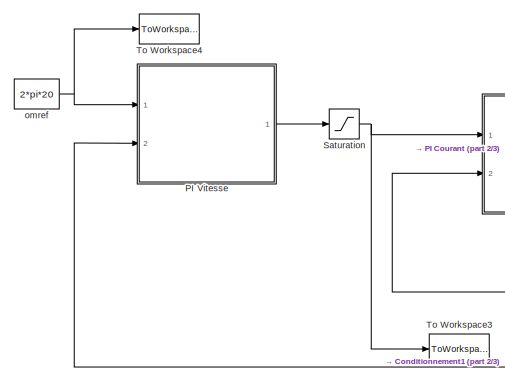
[diagram: root canvas - part 1/3, left side, full height]
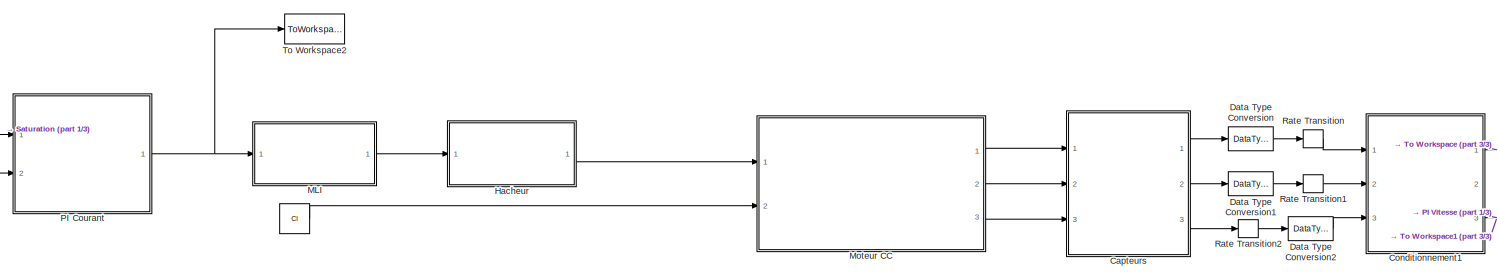
[diagram: root canvas - part 2/3, central region]
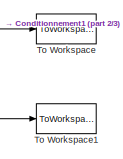
[diagram: root canvas - part 3/3, middle right region]
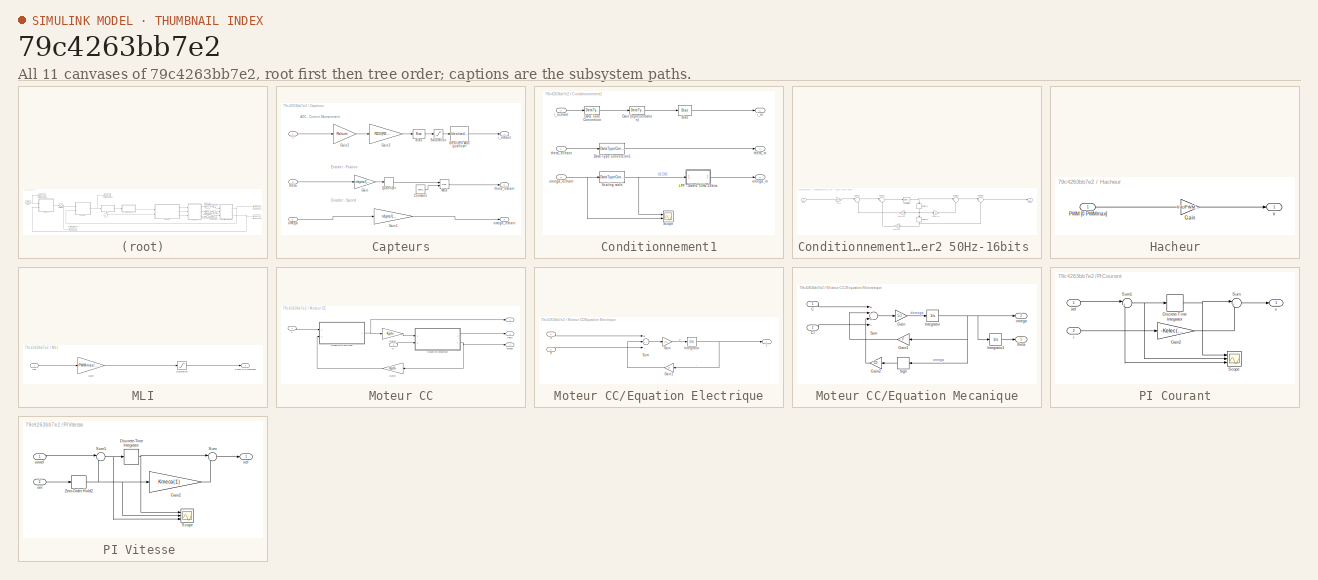
[diagram: thumbnail index - all 11 canvases of the model, root first then tree order]
MODEL slx_79c4263bb7e2
KIND model
CONFIG AbsTol = auto
CONFIG EnableMultiTasking = off
CONFIG FixedStep = 1e-4
CONFIG MaxStep = 1e-4
CONFIG MinStep = auto
CONFIG RelTol = 1e-3
CONFIG SampleTimeConstraint = Unconstrained
CONFIG Solver = VariableStepAuto
CONFIG SolverName = VariableStepAuto
CONFIG StartTime = 0.0
CONFIG StopTime = Tf
BLOCK [Constant]  
  Value = Cl
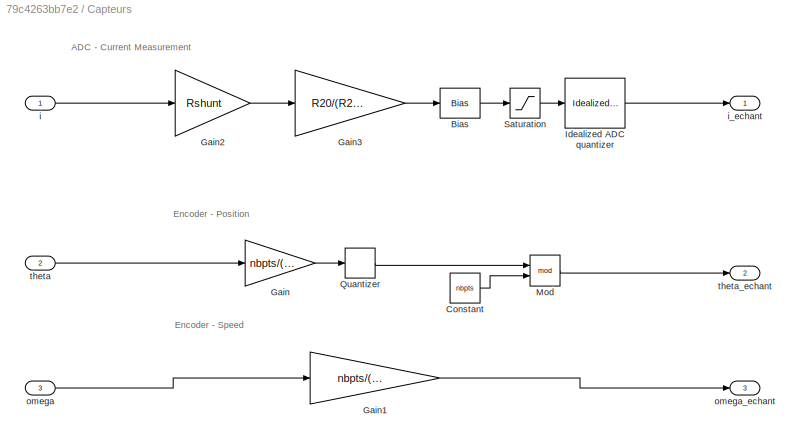
BLOCK [SubSystem] Capteurs
  Ports = [3, 3]
  RequestExecContextInheritance = off
  Variant = off
BLOCK [Bias] Capteurs/Bias
  Bias = Vcc/2
  SaturateOnIntegerOverflow = off
BLOCK [Constant] Capteurs/Constant
  Value = nbpts
BLOCK [Gain] Capteurs/Gain
  Gain = nbpts/(2*pi)
  OutDataTypeStr = Inherit: Inherit via internal rule
  ParamDataTypeStr = Inherit: Inherit via internal rule
  SaturateOnIntegerOverflow = off
BLOCK [Gain] Capteurs/Gain1
  Gain = nbpts/(2*pi)*TsQEI
  OutDataTypeStr = Inherit: Inherit via internal rule
  ParamDataTypeStr = Inherit: Inherit via internal rule
  SaturateOnIntegerOverflow = off
BLOCK [Gain] Capteurs/Gain2
  Gain = Rshunt
  OutDataTypeStr = Inherit: Inherit via internal rule
  ParamDataTypeStr = Inherit: Inherit via internal rule
  SaturateOnIntegerOverflow = off
BLOCK [Gain] Capteurs/Gain3
  Gain = R20/(R22+R23)
  OutDataTypeStr = Inherit: Inherit via internal rule
  ParamDataTypeStr = Inherit: Inherit via internal rule
  SaturateOnIntegerOverflow = off
BLOCK [Reference] Capteurs/Idealized ADC quantizer  REF=simulink_extras/Additional
Discrete/Idealized ADC quantizer
  AttributesFormatString = (settings: %<NumberOfConverterBits>-bit converter\nVmin: %<Vmin>, Vmax: %<Vmax>)
  Ports = [1, 1]
  SourceBlock = simulink_extras/Additional\nDiscrete/Idealized ADC quantizer
  SourceProductBaseCode = SL
  SourceProductName = Simulink
  SourceType = IdealADC
BLOCK [Math] Capteurs/Mod
  Operator = mod
  Ports = [2, 1]
BLOCK [Quantizer] Capteurs/Quantizer
  QuantizationInterval = 1
BLOCK [Saturate] Capteurs/Saturation
  InputPortMap = u0
  LowerLimit = 0
  Ports = [1, 1]
  UpperLimit = Vcc
BLOCK [Inport] Capteurs/i
  IconDisplay = Port number
BLOCK [Outport] Capteurs/i_echant
  IconDisplay = Port number
BLOCK [Inport] Capteurs/omega
  IconDisplay = Port number
  Port = 3
BLOCK [Outport] Capteurs/omega_echant
  IconDisplay = Port number
  Port = 3
BLOCK [Inport] Capteurs/theta
  IconDisplay = Port number
  Port = 2
BLOCK [Outport] Capteurs/theta_echant
  IconDisplay = Port number
  Port = 2
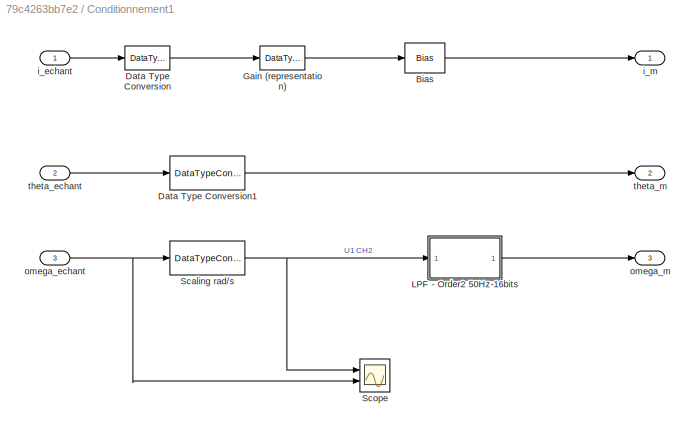
BLOCK [SubSystem] Conditionnement1
  Ports = [3, 3]
  RequestExecContextInheritance = off
  Variant = off
BLOCK [Bias] Conditionnement1/Bias
  Bias = -4.4
  SaturateOnIntegerOverflow = off
BLOCK [DataTypeConversion] Conditionnement1/Data Type Conversion
  OutDataTypeStr = int16
  RndMeth = Floor
  SaturateOnIntegerOverflow = off
BLOCK [DataTypeConversion] Conditionnement1/Data Type Conversion1
  ConvertRealWorld = Stored Integer (SI)
  OutDataTypeStr = fixdt(0,16,2*pi/Lignes,0)
  OutMax = [pi]
  OutMin = [0]
  RndMeth = Floor
  SaturateOnIntegerOverflow = off
BLOCK [DataTypeConversion] Conditionnement1/Gain (representation)
  ConvertRealWorld = Stored Integer (SI)
  OutDataTypeStr = fixdt(1,16,8.8/2^10,0)
  RndMeth = Floor
  SaturateOnIntegerOverflow = off
BLOCK [SubSystem] Conditionnement1/LPF - Order2 50Hz-16bits 
  ErrorFcn = dspFilterRealizedInBasicElemsAlgLoopErrFcnCallback
  Ports = [1, 1]
  RequestExecContextInheritance = off
  Tag = FilterWizardSubSystem
  UserDataPersistent = on
  Variant = off
BLOCK [DataTypeConversion] Conditionnement1/LPF - Order2 50Hz-16bits /CastState1
  OutDataTypeStr = fixdt(1,16,6)
  RndMeth = Floor
  SaturateOnIntegerOverflow = off
BLOCK [Delay] Conditionnement1/LPF - Order2 50Hz-16bits /Delay11
  DelayLength = 1
  InitialCondition = 0
  InputPortMap = u0
  Ports = [1, 1]
BLOCK [Delay] Conditionnement1/LPF - Order2 50Hz-16bits /Delay21
  DelayLength = 1
  InitialCondition = 0
  InputPortMap = u0
  Ports = [1, 1]
BLOCK [Inport] Conditionnement1/LPF - Order2 50Hz-16bits /Input
  IconDisplay = Port number
  OutMax = [500]
  OutMin = [-500]
BLOCK [Outport] Conditionnement1/LPF - Order2 50Hz-16bits /Output
  IconDisplay = Port number
BLOCK [Sum] Conditionnement1/LPF - Order2 50Hz-16bits /SumA21
  AccumDataTypeStr = fixdt(1,16,6)
  IconShape = round
  InputSameDT = off
  Inputs = |+-
  OutDataTypeStr = fixdt(1,16,6)
  Ports = [2, 1]
  SaturateOnIntegerOverflow = off
BLOCK [Sum] Conditionnement1/LPF - Order2 50Hz-16bits /SumA31
  AccumDataTypeStr = fixdt(1,16,6)
  IconShape = round
  InputSameDT = off
  Inputs = |+-
  OutDataTypeStr = fixdt(1,16,6)
  Ports = [2, 1]
  SaturateOnIntegerOverflow = off
BLOCK [Sum] Conditionnement1/LPF - Order2 50Hz-16bits /SumB21
  AccumDataTypeStr = fixdt(1,16,5)
  IconShape = round
  InputSameDT = off
  Inputs = |++
  OutDataTypeStr = fixdt(1,16,5)
  Ports = [2, 1]
  SaturateOnIntegerOverflow = off
BLOCK [Sum] Conditionnement1/LPF - Order2 50Hz-16bits /SumB31
  AccumDataTypeStr = fixdt(1,16,4)
  IconShape = round
  InputSameDT = off
  Inputs = |++
  OutDataTypeStr = fixdt(1,16,4)
  Ports = [2, 1]
  SaturateOnIntegerOverflow = off
BLOCK [Gain] Conditionnement1/LPF - Order2 50Hz-16bits /a(2)(1)
  Gain = -1.14298050253990113
  OutDataTypeStr = fixdt(1,16,6)
  ParamDataTypeStr = fixdt(1,16,14)
  SaturateOnIntegerOverflow = off
BLOCK [Gain] Conditionnement1/LPF - Order2 50Hz-16bits /a(3)(1)
  Gain = 0.412801598096188771
  OutDataTypeStr = fixdt(1,16,8)
  ParamDataTypeStr = fixdt(0,16,17)
  SaturateOnIntegerOverflow = off
BLOCK [Gain] Conditionnement1/LPF - Order2 50Hz-16bits /b(2)(1)
  Gain = 2
  OutDataTypeStr = fixdt(1,16,5)
  ParamDataTypeStr = fixdt(0,16,14)
  SaturateOnIntegerOverflow = off
BLOCK [Gain] Conditionnement1/LPF - Order2 50Hz-16bits /s(1)
  Gain = 0.0674552738890718956
  OutDataTypeStr = fixdt(1,16,8)
  ParamDataTypeStr = fixdt(0,16,19)
BLOCK [DataTypeConversion] Conditionnement1/Scaling rad//s
  ConvertRealWorld = Stored Integer (SI)
  OutDataTypeStr = fixdt(1,16,2*pi/Lignes/TsQEI,0)
  OutMax = [pi]
  OutMin = [0]
  RndMeth = Floor
  SaturateOnIntegerOverflow = off
BLOCK [Scope] Conditionnement1/Scope
  NumInputPorts = 2
  Ports = [2]
  ScopeSpecificationString = Simulink.scopes.TimeScopeBlockCfg('CurrentConfiguration', extmgr.ConfigurationSet(extmgr.Configuration('Core','General UI',true),extmgr.Configuration('Core','Source UI',true),extmgr.Configuration('Sources','WiredSimulink',true,'DataLoggingVariableName','ScopeData2'),extmgr.Configuration('Visuals','Time Domain',true,'SerializedDisplays',{struct('MinYLimReal','-45.55309','MaxYLimReal','409.97784','Y...<+2036ch>
BLOCK [Inport] Conditionnement1/i_echant
  IconDisplay = Port number
BLOCK [Outport] Conditionnement1/i_m
  IconDisplay = Port number
BLOCK [Inport] Conditionnement1/omega_echant
  IconDisplay = Port number
  LockScale = on
  OutDataTypeStr = int16
  Port = 3
BLOCK [Outport] Conditionnement1/omega_m
  IconDisplay = Port number
  Port = 3
BLOCK [Inport] Conditionnement1/theta_echant
  IconDisplay = Port number
  LockScale = on
  OutDataTypeStr = int16
  Port = 2
BLOCK [Outport] Conditionnement1/theta_m
  IconDisplay = Port number
  Port = 2
BLOCK [DataTypeConversion] Data Type Conversion
  OutDataTypeStr = uint16
  RndMeth = Floor
  SaturateOnIntegerOverflow = off
BLOCK [DataTypeConversion] Data Type Conversion1
  LockScale = on
  OutDataTypeStr = int16
  RndMeth = Floor
  SaturateOnIntegerOverflow = off
BLOCK [DataTypeConversion] Data Type Conversion2
  LockScale = on
  OutDataTypeStr = int16
  RndMeth = Floor
  SaturateOnIntegerOverflow = off
BLOCK [SubSystem] Hacheur
  Ports = [1, 1]
  RequestExecContextInheritance = off
  Variant = off
BLOCK [Gain] Hacheur/Gain
  Gain = Vdc/PWMmax
  OutDataTypeStr = double
  ParamDataTypeStr = Inherit: Inherit via internal rule
  SaturateOnIntegerOverflow = off
BLOCK [Inport] Hacheur/PWM [0 PWMmax]
  IconDisplay = Port number
BLOCK [Outport] Hacheur/v
  IconDisplay = Port number
BLOCK [SubSystem] MLI
  Ports = [1, 1]
  RequestExecContextInheritance = off
  Variant = off
BLOCK [Gain] MLI/Gain
  Gain = PWMmax/Vdc
  OutDataTypeStr = int16
  ParamDataTypeStr = Inherit: Inherit via internal rule
  SaturateOnIntegerOverflow = off
BLOCK [Outport] MLI/PWM [0 PWMmax]
  IconDisplay = Port number
BLOCK [Saturate] MLI/Saturation
  InputPortMap = u0
  LowerLimit = -PWMmax
  Ports = [1, 1]
  UpperLimit = PWMmax
BLOCK [Inport] MLI/Vdc
  IconDisplay = Port number
BLOCK [SubSystem] Moteur CC
  Ports = [2, 3]
  RequestExecContextInheritance = off
  Variant = off
BLOCK [Inport] Moteur CC/Cl
  IconDisplay = Port number
  Port = 2
BLOCK [SubSystem] Moteur CC/Equation Electrique
  Ports = [2, 1]
  RequestExecContextInheritance = off
  Variant = off
BLOCK [Gain] Moteur CC/Equation Electrique/Gain
  Gain = 1/L
  OutDataTypeStr = Inherit: Inherit via internal rule
  ParamDataTypeStr = Inherit: Inherit via internal rule
  SaturateOnIntegerOverflow = off
BLOCK [Gain] Moteur CC/Equation Electrique/Gain1
  Gain = R
  OutDataTypeStr = Inherit: Inherit via internal rule
  ParamDataTypeStr = Inherit: Inherit via internal rule
  SaturateOnIntegerOverflow = off
BLOCK [Integrator] Moteur CC/Equation Electrique/Integrator
  Ports = [1, 1]
BLOCK [Sum] Moteur CC/Equation Electrique/Sum
  InputSameDT = off
  Inputs = +--
  OutDataTypeStr = Inherit: Inherit via internal rule
  Ports = [3, 1]
  SaturateOnIntegerOverflow = off
BLOCK [Inport] Moteur CC/Equation Electrique/e
  IconDisplay = Port number
  Port = 2
BLOCK [Outport] Moteur CC/Equation Electrique/i
  IconDisplay = Port number
BLOCK [Inport] Moteur CC/Equation Electrique/v
  IconDisplay = Port number
BLOCK [SubSystem] Moteur CC/Equation Mecanique
  Ports = [2, 2]
  RequestExecContextInheritance = off
  Variant = off
BLOCK [Inport] Moteur CC/Equation Mecanique/C
  IconDisplay = Port number
BLOCK [Inport] Moteur CC/Equation Mecanique/Cl
  IconDisplay = Port number
  Port = 2
BLOCK [Gain] Moteur CC/Equation Mecanique/Gain
  Gain = 1/J
  OutDataTypeStr = Inherit: Inherit via internal rule
  ParamDataTypeStr = Inherit: Inherit via internal rule
  SaturateOnIntegerOverflow = off
BLOCK [Gain] Moteur CC/Equation Mecanique/Gain1
  Gain = F
  OutDataTypeStr = Inherit: Inherit via internal rule
  ParamDataTypeStr = Inherit: Inherit via internal rule
  SaturateOnIntegerOverflow = off
BLOCK [Gain] Moteur CC/Equation Mecanique/Gain2
  Gain = C0
  OutDataTypeStr = Inherit: Inherit via internal rule
  ParamDataTypeStr = Inherit: Inherit via internal rule
  SaturateOnIntegerOverflow = off
BLOCK [Integrator] Moteur CC/Equation Mecanique/Integrator
  Ports = [1, 1]
BLOCK [Integrator] Moteur CC/Equation Mecanique/Integrator1
  Ports = [1, 1]
BLOCK [Signum] Moteur CC/Equation Mecanique/Sign
BLOCK [Sum] Moteur CC/Equation Mecanique/Sum
  InputSameDT = off
  Inputs = +-+-
  OutDataTypeStr = Inherit: Inherit via internal rule
  Ports = [4, 1]
  SaturateOnIntegerOverflow = off
BLOCK [Outport] Moteur CC/Equation Mecanique/omega
  IconDisplay = Port number
  Port = 2
BLOCK [Outport] Moteur CC/Equation Mecanique/theta
  IconDisplay = Port number
BLOCK [Gain] Moteur CC/Gain1
  Gain = Kphi
  OutDataTypeStr = Inherit: Inherit via internal rule
  ParamDataTypeStr = Inherit: Inherit via internal rule
  SaturateOnIntegerOverflow = off
BLOCK [Gain] Moteur CC/Gain3  
  Gain = Kphi
  OutDataTypeStr = Inherit: Inherit via internal rule
  ParamDataTypeStr = Inherit: Inherit via internal rule
  SaturateOnIntegerOverflow = off
BLOCK [Outport] Moteur CC/i
  IconDisplay = Port number
BLOCK [Outport] Moteur CC/omega
  IconDisplay = Port number
  Port = 3
BLOCK [Outport] Moteur CC/theta
  IconDisplay = Port number
  Port = 2
BLOCK [Inport] Moteur CC/v
  IconDisplay = Port number
BLOCK [SubSystem] PI Courant
  Ports = [2, 1]
  RequestExecContextInheritance = off
  TreatAsAtomicUnit = on
  Variant = off
BLOCK [DiscreteIntegrator] PI Courant/Discrete-Time Integrator
  ICPrevOutput = DiscIntNeverNeededParam
  ICPrevScaledInput = DiscIntNeverNeededParam
  InitialConditionSetting = State (most efficient)
  OutDataTypeStr = fixdt(1,32,26)
  Ports = [1, 1]
  SampleTime = Ts
  SaturateOnIntegerOverflow = on
  gainval = Kelec(2)
BLOCK [Gain] PI Courant/Gain2
  Gain = -Kelec(1)*Ts
  OutDataTypeStr = fixdt(1,16,16)
  ParamDataTypeStr = Inherit: Inherit via internal rule
  SaturateOnIntegerOverflow = off
BLOCK [Scope] PI Courant/Scope
  NumInputPorts = 3
  Ports = [3]
  ScopeSpecificationString = Simulink.scopes.TimeScopeBlockCfg('CurrentConfiguration', extmgr.ConfigurationSet(extmgr.Configuration('Core','General UI',true),extmgr.Configuration('Core','Source UI',true),extmgr.Configuration('Sources','WiredSimulink',true,'DataLoggingVariableName','ScopeData3'),extmgr.Configuration('Visuals','Time Domain',true,'SerializedDisplays',{struct('MinYLimReal','-3.05273','MaxYLimReal','24.81836','YLa...<+2779ch>
BLOCK [Sum] PI Courant/Sum
  AccumDataTypeStr = fixdt(1,16,10)
  IconShape = round
  InputSameDT = off
  Inputs = |+-
  OutDataTypeStr = Inherit: Same as accumulator
  Ports = [2, 1]
  SaturateOnIntegerOverflow = off
BLOCK [Sum] PI Courant/Sum1
  IconShape = round
  InputSameDT = off
  Inputs = |+-
  OutDataTypeStr = fixdt(1,16,5)
  Ports = [2, 1]
  SaturateOnIntegerOverflow = off
BLOCK [Inport] PI Courant/i
  IconDisplay = Port number
  Port = 2
BLOCK [Inport] PI Courant/iref
  IconDisplay = Port number
  OutDataTypeStr = fixdt(1,16,6)
BLOCK [Outport] PI Courant/v
  IconDisplay = Port number
BLOCK [SubSystem] PI Vitesse 
  Ports = [2, 1]
  RequestExecContextInheritance = off
  TreatAsAtomicUnit = on
  Variant = off
BLOCK [DiscreteIntegrator] PI Vitesse /Discrete-Time Integrator
  ICPrevOutput = DiscIntNeverNeededParam
  ICPrevScaledInput = DiscIntNeverNeededParam
  InitialConditionSetting = State (most efficient)
  OutDataTypeStr = fixdt(1,32,20)
  Ports = [1, 1]
  SampleTime = Tsmeca
  gainval = -Kmeca(2)
BLOCK [Gain] PI Vitesse /Gain2
  Gain = Kmeca(1)
  OutDataTypeStr = Inherit: Inherit via internal rule
  ParamDataTypeStr = Inherit: Inherit via internal rule
  SaturateOnIntegerOverflow = off
BLOCK [Scope] PI Vitesse /Scope
  NumInputPorts = 3
  Ports = [3]
  ScopeSpecificationString = Simulink.scopes.TimeScopeBlockCfg('CurrentConfiguration', extmgr.ConfigurationSet(extmgr.Configuration('Core','General UI',true),extmgr.Configuration('Core','Source UI',true),extmgr.Configuration('Sources','WiredSimulink',true,'DataLoggingVariableName','ScopeData1'),extmgr.Configuration('Visuals','Time Domain',true,'SerializedDisplays',{struct('MinYLimReal','-3.00513','MaxYLimReal','27.04618','YLa...<+2773ch>
BLOCK [Sum] PI Vitesse /Sum
  IconShape = round
  InputSameDT = off
  Inputs = |+-
  OutDataTypeStr = fixdt(1,16,6)
  Ports = [2, 1]
BLOCK [Sum] PI Vitesse /Sum1
  IconShape = round
  InputSameDT = off
  Inputs = |+-
  OutDataTypeStr = fixdt(1,16,3)
  Ports = [2, 1]
BLOCK [ZeroOrderHold] PI Vitesse /Zero-Order Hold2
  SampleTime = Tsmeca
BLOCK [Outport] PI Vitesse /iref
  IconDisplay = Port number
BLOCK [Inport] PI Vitesse /om
  IconDisplay = Port number
  Port = 2
BLOCK [Inport] PI Vitesse /omref
  IconDisplay = Port number
  OutDataTypeStr = fixdt(1,16,4)
BLOCK [RateTransition] Rate Transition
  Deterministic = off
  OutPortSampleTime = Ts
BLOCK [RateTransition] Rate Transition1
  Deterministic = off
  OutPortSampleTime = TsQEI
BLOCK [RateTransition] Rate Transition2
  Deterministic = off
  OutPortSampleTime = TsQEI
BLOCK [Saturate] Saturation
  InputPortMap = u0
  LowerLimit = -Imax
  Ports = [1, 1]
  UpperLimit = Imax
BLOCK [ToWorkspace] To Workspace
  FixptAsFi = on
  MaxDataPoints = inf
  Ports = [1]
  SampleTime = -1
  Save2DSignal = 3-D array (concatenate along third dimension)
  SaveFormat = Timeseries
  VariableName = i
BLOCK [ToWorkspace] To Workspace1
  FixptAsFi = on
  MaxDataPoints = inf
  Ports = [1]
  SampleTime = -1
  Save2DSignal = 3-D array (concatenate along third dimension)
  SaveFormat = Timeseries
  VariableName = omega
BLOCK [ToWorkspace] To Workspace2
  FixptAsFi = on
  MaxDataPoints = inf
  Ports = [1]
  SampleTime = -1
  Save2DSignal = 3-D array (concatenate along third dimension)
  SaveFormat = Timeseries
  VariableName = v
BLOCK [ToWorkspace] To Workspace3
  FixptAsFi = on
  MaxDataPoints = inf
  Ports = [1]
  SampleTime = -1
  Save2DSignal = 3-D array (concatenate along third dimension)
  SaveFormat = Timeseries
  VariableName = iref
BLOCK [ToWorkspace] To Workspace4
  FixptAsFi = on
  MaxDataPoints = inf
  Ports = [1]
  SampleTime = -1
  Save2DSignal = 3-D array (concatenate along third dimension)
  SaveFormat = Timeseries
  VariableName = omref
BLOCK [Constant] omref
  OutDataTypeStr = Inherit: Inherit via back propagation
  Value = 2*pi*20
ANNOTATION Capteurs: ADC - Current Measurement
ANNOTATION Capteurs: Encoder - Position
ANNOTATION Capteurs: Encoder - Speed
LINE  :1 -> Moteur CC:2
LINE Capteurs/Bias:1 -> Capteurs/Saturation:1
LINE Capteurs/Constant:1 -> Capteurs/Mod:2
LINE Capteurs/Gain1:1 -> Capteurs/omega_echant:1
LINE Capteurs/Gain2:1 -> Capteurs/Gain3:1
LINE Capteurs/Gain3:1 -> Capteurs/Bias:1
LINE Capteurs/Gain:1 -> Capteurs/Quantizer:1
LINE Capteurs/Idealized ADC quantizer:1 -> Capteurs/i_echant:1
LINE Capteurs/Mod:1 -> Capteurs/theta_echant:1
LINE Capteurs/Quantizer:1 -> Capteurs/Mod:1
LINE Capteurs/Saturation:1 -> Capteurs/Idealized ADC quantizer:1
LINE Capteurs/i:1 -> Capteurs/Gain2:1
LINE Capteurs/omega:1 -> Capteurs/Gain1:1
LINE Capteurs/theta:1 -> Capteurs/Gain:1
LINE Capteurs:1 -> Data Type Conversion:1
LINE Capteurs:2 -> Data Type Conversion1:1
LINE Capteurs:3 -> Rate Transition2:1
LINE Conditionnement1/Bias:1 -> Conditionnement1/i_m:1
LINE Conditionnement1/Data Type Conversion1:1 -> Conditionnement1/theta_m:1
LINE Conditionnement1/Data Type Conversion:1 -> Conditionnement1/Gain (representation):1
LINE Conditionnement1/Gain (representation):1 -> Conditionnement1/Bias:1
NET Conditionnement1/LPF - Order2 50Hz-16bits /CastState1:1 -> Conditionnement1/LPF - Order2 50Hz-16bits /Delay11:1, Conditionnement1/LPF - Order2 50Hz-16bits /SumB21:1
NET Conditionnement1/LPF - Order2 50Hz-16bits /Delay11:1 -> Conditionnement1/LPF - Order2 50Hz-16bits /Delay21:1, Conditionnement1/LPF - Order2 50Hz-16bits /a(2)(1):1, Conditionnement1/LPF - Order2 50Hz-16bits /b(2)(1):1
NET Conditionnement1/LPF - Order2 50Hz-16bits /Delay21:1 -> Conditionnement1/LPF - Order2 50Hz-16bits /SumB31:2, Conditionnement1/LPF - Order2 50Hz-16bits /a(3)(1):1
LINE Conditionnement1/LPF - Order2 50Hz-16bits /Input:1 -> Conditionnement1/LPF - Order2 50Hz-16bits /s(1):1
LINE Conditionnement1/LPF - Order2 50Hz-16bits /SumA21:1 -> Conditionnement1/LPF - Order2 50Hz-16bits /SumA31:1
LINE Conditionnement1/LPF - Order2 50Hz-16bits /SumA31:1 -> Conditionnement1/LPF - Order2 50Hz-16bits /CastState1:1
LINE Conditionnement1/LPF - Order2 50Hz-16bits /SumB21:1 -> Conditionnement1/LPF - Order2 50Hz-16bits /SumB31:1
LINE Conditionnement1/LPF - Order2 50Hz-16bits /SumB31:1 -> Conditionnement1/LPF - Order2 50Hz-16bits /Output:1
LINE Conditionnement1/LPF - Order2 50Hz-16bits /a(2)(1):1 -> Conditionnement1/LPF - Order2 50Hz-16bits /SumA21:2
LINE Conditionnement1/LPF - Order2 50Hz-16bits /a(3)(1):1 -> Conditionnement1/LPF - Order2 50Hz-16bits /SumA31:2
LINE Conditionnement1/LPF - Order2 50Hz-16bits /b(2)(1):1 -> Conditionnement1/LPF - Order2 50Hz-16bits /SumB21:2
LINE Conditionnement1/LPF - Order2 50Hz-16bits /s(1):1 -> Conditionnement1/LPF - Order2 50Hz-16bits /SumA21:1
LINE Conditionnement1/LPF - Order2 50Hz-16bits :1 -> Conditionnement1/omega_m:1
NET Conditionnement1/Scaling rad//s:1 -> Conditionnement1/LPF - Order2 50Hz-16bits :1, Conditionnement1/Scope:1
LINE Conditionnement1/i_echant:1 -> Conditionnement1/Data Type Conversion:1
NET Conditionnement1/omega_echant:1 -> Conditionnement1/Scaling rad//s:1, Conditionnement1/Scope:2
LINE Conditionnement1/theta_echant:1 -> Conditionnement1/Data Type Conversion1:1
NET Conditionnement1:1 -> PI Courant:2, To Workspace:1
NET Conditionnement1:3 -> PI Vitesse :2, To Workspace1:1
LINE Data Type Conversion1:1 -> Rate Transition1:1
LINE Data Type Conversion2:1 -> Conditionnement1:3
LINE Data Type Conversion:1 -> Rate Transition:1
LINE Hacheur/Gain:1 -> Hacheur/v:1
LINE Hacheur/PWM [0 PWMmax]:1 -> Hacheur/Gain:1
LINE Hacheur:1 -> Moteur CC:1
LINE MLI/Gain:1 -> MLI/Saturation:1
LINE MLI/Saturation:1 -> MLI/PWM [0 PWMmax]:1
LINE MLI/Vdc:1 -> MLI/Gain:1
LINE MLI:1 -> Hacheur:1
LINE Moteur CC/Cl:1 -> Moteur CC/Equation Mecanique:2
LINE Moteur CC/Equation Electrique/Gain1:1 -> Moteur CC/Equation Electrique/Sum:2
LINE Moteur CC/Equation Electrique/Gain:1 -> Moteur CC/Equation Electrique/Integrator:1
NET Moteur CC/Equation Electrique/Integrator:1 -> Moteur CC/Equation Electrique/Gain1:1, Moteur CC/Equation Electrique/i:1
LINE Moteur CC/Equation Electrique/Sum:1 -> Moteur CC/Equation Electrique/Gain:1
LINE Moteur CC/Equation Electrique/e:1 -> Moteur CC/Equation Electrique/Sum:3
LINE Moteur CC/Equation Electrique/v:1 -> Moteur CC/Equation Electrique/Sum:1
NET Moteur CC/Equation Electrique:1 -> Moteur CC/Gain1:1, Moteur CC/i:1
LINE Moteur CC/Equation Mecanique/C:1 -> Moteur CC/Equation Mecanique/Sum:1
LINE Moteur CC/Equation Mecanique/Cl:1 -> Moteur CC/Equation Mecanique/Sum:4
LINE Moteur CC/Equation Mecanique/Gain1:1 -> Moteur CC/Equation Mecanique/Sum:2
LINE Moteur CC/Equation Mecanique/Gain2:1 -> Moteur CC/Equation Mecanique/Sum:3
LINE Moteur CC/Equation Mecanique/Gain:1 -> Moteur CC/Equation Mecanique/Integrator:1
LINE Moteur CC/Equation Mecanique/Integrator1:1 -> Moteur CC/Equation Mecanique/theta:1
NET Moteur CC/Equation Mecanique/Integrator:1 -> Moteur CC/Equation Mecanique/Gain1:1, Moteur CC/Equation Mecanique/Integrator1:1, Moteur CC/Equation Mecanique/Sign:1, Moteur CC/Equation Mecanique/omega:1
LINE Moteur CC/Equation Mecanique/Sign:1 -> Moteur CC/Equation Mecanique/Gain2:1
LINE Moteur CC/Equation Mecanique/Sum:1 -> Moteur CC/Equation Mecanique/Gain:1
LINE Moteur CC/Equation Mecanique:1 -> Moteur CC/theta:1
NET Moteur CC/Equation Mecanique:2 -> Moteur CC/Gain3  :1, Moteur CC/omega:1
LINE Moteur CC/Gain1:1 -> Moteur CC/Equation Mecanique:1
LINE Moteur CC/Gain3  :1 -> Moteur CC/Equation Electrique:2
LINE Moteur CC/v:1 -> Moteur CC/Equation Electrique:1
LINE Moteur CC:1 -> Capteurs:1
LINE Moteur CC:2 -> Capteurs:2
LINE Moteur CC:3 -> Capteurs:3
NET PI Courant/Discrete-Time Integrator:1 -> PI Courant/Scope:1, PI Courant/Sum:1
LINE PI Courant/Gain2:1 -> PI Courant/Sum:2
NET PI Courant/Sum1:1 -> PI Courant/Discrete-Time Integrator:1, PI Courant/Scope:2
LINE PI Courant/Sum:1 -> PI Courant/v:1
NET PI Courant/i:1 -> PI Courant/Gain2:1, PI Courant/Scope:3, PI Courant/Sum1:2
LINE PI Courant/iref:1 -> PI Courant/Sum1:1
NET PI Courant:1 -> MLI:1, To Workspace2:1
NET PI Vitesse /Discrete-Time Integrator:1 -> PI Vitesse /Scope:1, PI Vitesse /Sum:1
LINE PI Vitesse /Gain2:1 -> PI Vitesse /Sum:2
NET PI Vitesse /Sum1:1 -> PI Vitesse /Discrete-Time Integrator:1, PI Vitesse /Scope:3
LINE PI Vitesse /Sum:1 -> PI Vitesse /iref:1
NET PI Vitesse /Zero-Order Hold2:1 -> PI Vitesse /Gain2:1, PI Vitesse /Scope:2, PI Vitesse /Sum1:2
LINE PI Vitesse /om:1 -> PI Vitesse /Zero-Order Hold2:1
LINE PI Vitesse /omref:1 -> PI Vitesse /Sum1:1
LINE PI Vitesse :1 -> Saturation:1
LINE Rate Transition1:1 -> Conditionnement1:2
LINE Rate Transition2:1 -> Data Type Conversion2:1
LINE Rate Transition:1 -> Conditionnement1:1
NET Saturation:1 -> PI Courant:1, To Workspace3:1
NET omref:1 -> PI Vitesse :1, To Workspace4:1
note: NET lines group one-source signal fan-out (src -> all destinations, sorted); 1:1 wires keep LINE
